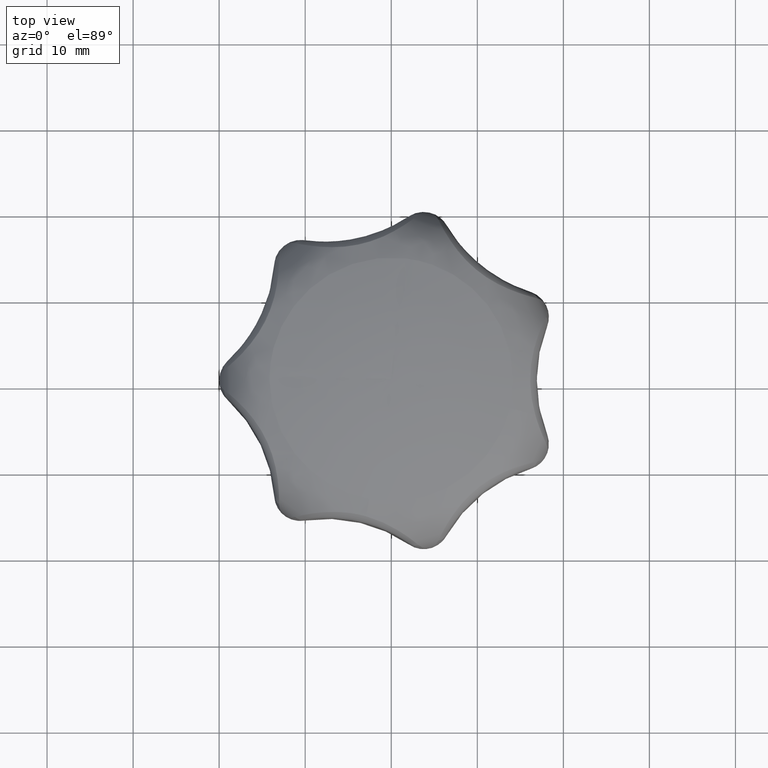
[diagram: clean part render]
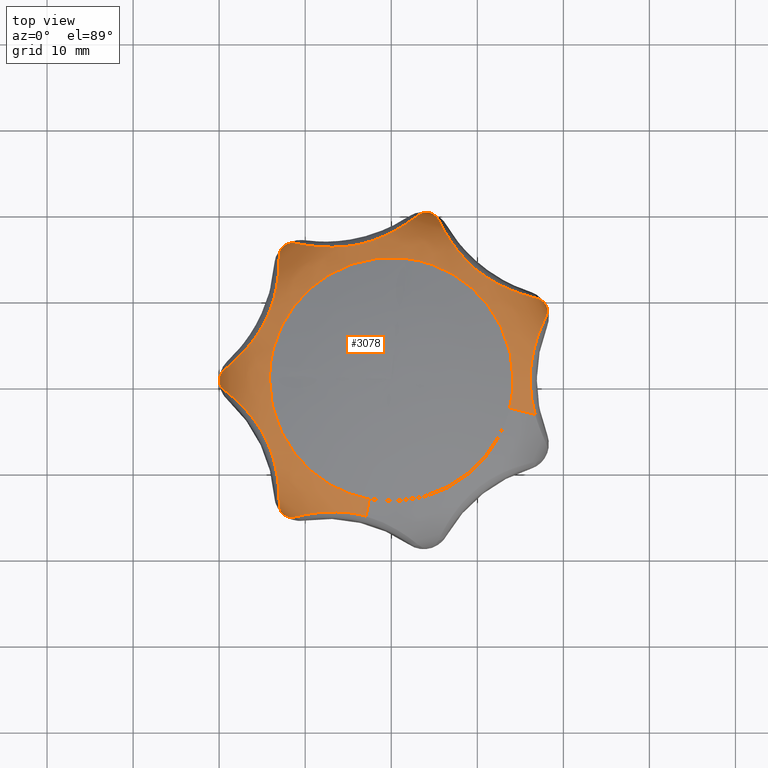
[diagram: same view with one face highlighted and labeled with its STEP entity id]
A machine part, top view. The second image highlights one B-rep face of the part: STEP entity #3078.
In plain terms, the highlighted face is a freeform B-spline surface patch.
Its self-contained STEP definition (entity closure, byte-faithful):
#2155=CARTESIAN_POINT('',(-2.555872080191708,-13.924026211694240,23.484274901219809));
#2156=VERTEX_POINT('',#2155);
#2157=CARTESIAN_POINT('',(13.755059415906590,-3.348035727709375,23.484274579114441));
#2158=VERTEX_POINT('',#2157);
#2174=CARTESIAN_POINT('',(-2.918604667190907,-15.900141547597050,22.712634018882738));
#2175=VERTEX_POINT('',#2174);
#2176=CARTESIAN_POINT('',(-2.918604667190908,-15.900141547597054,22.712634018882738));
#2177=CARTESIAN_POINT('',(-2.747337455134375,-14.967102233585980,23.244096928042421));
#2178=CARTESIAN_POINT('',(-2.555872080191708,-13.924026211694235,23.484274901219813));
#2186=(BOUNDED_CURVE()B_SPLINE_CURVE(2,(#2176,#2177,#2178),.UNSPECIFIED.,.F.,.U.)B_SPLINE_CURVE_WITH_KNOTS((3,3),(-0.611580639836054,-0.305029398662401),.UNSPECIFIED.)CURVE()GEOMETRIC_REPRESENTATION_ITEM()RATIONAL_B_SPLINE_CURVE((0.808535295945708,0.832229409157747,0.874623568141432))REPRESENTATION_ITEM(''));
#2187=EDGE_CURVE('',#2175,#2156,#2186,.T.);
#2374=CARTESIAN_POINT('',(16.727859375144970,-4.071626966035197,22.001084314671921));
#2375=VERTEX_POINT('',#2374);
#2399=CARTESIAN_POINT('',(16.727859375144966,-4.071626966035197,22.001084314671921));
#2400=CARTESIAN_POINT('',(15.409158188398800,-3.750649894654364,23.098715307109856));
#2401=CARTESIAN_POINT('',(13.755059415906594,-3.348035727709375,23.484274579114441));
#2409=(BOUNDED_CURVE()B_SPLINE_CURVE(2,(#2399,#2400,#2401),.UNSPECIFIED.,.F.,.U.)B_SPLINE_CURVE_WITH_KNOTS((3,3),(-0.783102013579463,-0.305029484415315),.UNSPECIFIED.)CURVE()GEOMETRIC_REPRESENTATION_ITEM()RATIONAL_B_SPLINE_CURVE((0.806005381889881,0.827114324440198,0.894750234435221))REPRESENTATION_ITEM(''));
#2410=EDGE_CURVE('',#2375,#2158,#2409,.T.);
#2415=CARTESIAN_POINT('',(19.418769040336933,-4.726604994361935,15.707088083103853));
#2416=CARTESIAN_POINT('',(24.145374034698854,14.692164045974993,15.707088083103859));
#2417=CARTESIAN_POINT('',(4.726604994361936,19.418769040336933,15.707088083103853));
#2418=CARTESIAN_POINT('',(-14.692164045974989,24.145374034698854,15.707088083103859));
#2419=CARTESIAN_POINT('',(-19.418769040336933,4.726604994361937,15.707088083103853));
#2420=CARTESIAN_POINT('',(-24.145374034698854,-14.692164045974984,15.707088083103859));
#2421=CARTESIAN_POINT('',(-4.726604994361943,-19.418769040336933,15.707088083103853));
#2422=CARTESIAN_POINT('',(-4.170848167294949,-19.554042444588713,15.707088083103853));
#2423=CARTESIAN_POINT('',(-3.608264416988990,-19.657309421987691,15.707088083103848));
#2424=CARTESIAN_POINT('',(19.825513127380642,-4.825608109814543,22.483440366863590));
#2425=CARTESIAN_POINT('',(24.651121237195188,14.999905017566103,22.483440366863597));
#2426=CARTESIAN_POINT('',(4.825608109814545,19.825513127380642,22.483440366863590));
#2427=CARTESIAN_POINT('',(-14.999905017566103,24.651121237195209,22.483440366863597));
#2428=CARTESIAN_POINT('',(-19.825513127380642,4.825608109814547,22.483440366863590));
#2429=CARTESIAN_POINT('',(-24.651121237195209,-14.999905017566098,22.483440366863597));
#2430=CARTESIAN_POINT('',(-4.825608109814552,-19.825513127380642,22.483440366863590));
#2431=CARTESIAN_POINT('',(-4.258210441725447,-19.963619958262083,22.483440366863604));
#2432=CARTESIAN_POINT('',(-3.683842854172724,-20.069049958062561,22.483440366863604));
#2433=CARTESIAN_POINT('',(13.314253197602527,-3.240741755013714,23.572424024737455));
#2434=CARTESIAN_POINT('',(16.554994952616237,10.073511442588810,23.572424024737451));
#2435=CARTESIAN_POINT('',(3.240741755013714,13.314253197602527,23.572424024737455));
#2436=CARTESIAN_POINT('',(-10.073511442588808,16.554994952616237,23.572424024737451));
#2437=CARTESIAN_POINT('',(-13.314253197602527,3.240741755013715,23.572424024737455));
#2438=CARTESIAN_POINT('',(-16.554994952616237,-10.073511442588803,23.572424024737451));
#2439=CARTESIAN_POINT('',(-3.240741755013718,-13.314253197602527,23.572424024737455));
#2440=CARTESIAN_POINT('',(-2.859693548688393,-13.407001834314189,23.572424024737451));
#2441=CARTESIAN_POINT('',(-2.473964541825434,-13.477805636614184,23.572424024737462));
#2449=(BOUNDED_SURFACE()B_SPLINE_SURFACE(2,2,((#2415,#2424,#2433),(#2416,#2425,#2434),(#2417,#2426,#2435),(#2418,#2427,#2436),(#2419,#2428,#2437),(#2420,#2429,#2438),(#2421,#2430,#2439),(#2422,#2431,#2440),(#2423,#2432,#2441)),.UNSPECIFIED.,.F.,.F.,.U.)B_SPLINE_SURFACE_WITH_KNOTS((3,2,2,2,3),(3,3),(0.0,33.113440941125333,66.226881882250652,99.340322823375971,100.664860461020990),(0.0,11.561759289067121),.UNSPECIFIED.)GEOMETRIC_REPRESENTATION_ITEM()RATIONAL_B_SPLINE_SURFACE(((0.914120687273561,0.678137841699596,0.915320311075312),(0.646380936794042,0.479515866444994,0.647229198919133),(0.914120687273561,0.678137841699596,0.915320311075312),(0.646380936794042,0.479515866444994,0.647229198919133),(0.914120687273561,0.678137841699596,0.915320311075312),(0.646380936794042,0.479515866444994,0.647229198919133),(0.914120687273561,0.678137841699596,0.915320311075312),(0.903411097254380,0.670192962689412,0.904596666589065),(0.893558274436734,0.662883674000043,0.894730913661717)))REPRESENTATION_ITEM('')SURFACE());
#2450=CARTESIAN_POINT('',(-14.156655298356300,0.0,23.484275474744681));
#2451=VERTEX_POINT('',#2450);
#2452=CARTESIAN_POINT('',(-14.156655298356300,0.0,23.484275474744681));
#2453=CARTESIAN_POINT('',(-14.156655298356309,-11.794602719198927,23.484275474744685));
#2454=CARTESIAN_POINT('',(-2.555872080191708,-13.924026211694237,23.484274901219816));
#2462=(BOUNDED_CURVE()B_SPLINE_CURVE(2,(#2452,#2453,#2454),.UNSPECIFIED.,.F.,.U.)B_SPLINE_CURVE_WITH_KNOTS((3,3),(0.0,0.218989093635942),.UNSPECIFIED.)CURVE()GEOMETRIC_REPRESENTATION_ITEM()RATIONAL_B_SPLINE_CURVE((1.0,0.743438317919714,0.936350317603224))REPRESENTATION_ITEM(''));
#2463=EDGE_CURVE('',#2451,#2156,#2462,.T.);
#2464=ORIENTED_EDGE('',*,*,#2463,.F.);
#2465=CARTESIAN_POINT('',(1.634552423069075,14.061897552732781,23.484292791448969));
#2466=VERTEX_POINT('',#2465);
#2467=CARTESIAN_POINT('',(1.634552423069075,14.061897552732784,23.484292791448965));
#2468=CARTESIAN_POINT('',(0.820014128056921,14.156581436390683,23.484292344836099));
#2469=CARTESIAN_POINT('',(-0.000008560112460,14.156583749900550,23.484291843301921));
#2470=CARTESIAN_POINT('',(-14.156661194622668,14.156623689716854,23.484283184949774));
#2471=CARTESIAN_POINT('',(-14.156655298356300,0.0,23.484275474744681));
#2479=(BOUNDED_CURVE()B_SPLINE_CURVE(2,(#2467,#2468,#2469,#2470,#2471),.UNSPECIFIED.,.F.,.U.)B_SPLINE_CURVE_WITH_KNOTS((3,2,3),(0.730000313272835,0.750000000000000,1.0),.UNSPECIFIED.)CURVE()GEOMETRIC_REPRESENTATION_ITEM()RATIONAL_B_SPLINE_CURVE((0.956886734788466,0.976568909516880,1.0,0.707106781186548,1.0))REPRESENTATION_ITEM(''));
#2480=EDGE_CURVE('',#2466,#2451,#2479,.T.);
#2481=ORIENTED_EDGE('',*,*,#2480,.F.);
#2482=CARTESIAN_POINT('',(14.156659255858120,0.0,23.484274578441550));
#2483=VERTEX_POINT('',#2482);
#2484=CARTESIAN_POINT('',(14.156659255858120,0.0,23.484274578441550));
#2485=CARTESIAN_POINT('',(14.156654613261113,12.606371143016760,23.484283684945257));
#2486=CARTESIAN_POINT('',(1.634552423069075,14.061897552732784,23.484292791448965));
#2494=(BOUNDED_CURVE()B_SPLINE_CURVE(2,(#2484,#2485,#2486),.UNSPECIFIED.,.F.,.U.)B_SPLINE_CURVE_WITH_KNOTS((3,3),(0.500000000000000,0.730000313272835),.UNSPECIFIED.)CURVE()GEOMETRIC_REPRESENTATION_ITEM()RATIONAL_B_SPLINE_CURVE((1.0,0.730537871669667,0.956886734788466))REPRESENTATION_ITEM(''));
#2495=EDGE_CURVE('',#2483,#2466,#2494,.T.);
#2496=ORIENTED_EDGE('',*,*,#2495,.F.);
#2497=CARTESIAN_POINT('',(13.755059415906594,-3.348035727709375,23.484274579114444));
#2498=CARTESIAN_POINT('',(14.156659255858116,-1.698103998237507,23.484274578441550));
#2499=CARTESIAN_POINT('',(14.156659255858120,0.0,23.484274578441550));
#2507=(BOUNDED_CURVE()B_SPLINE_CURVE(2,(#2497,#2498,#2499),.UNSPECIFIED.,.F.,.U.)B_SPLINE_CURVE_WITH_KNOTS((3,3),(0.459598322152084,0.500000000000000),.UNSPECIFIED.)CURVE()GEOMETRIC_REPRESENTATION_ITEM()RATIONAL_B_SPLINE_CURVE((0.920631805978382,0.952666490118639,1.0))REPRESENTATION_ITEM(''));
#2508=EDGE_CURVE('',#2158,#2483,#2507,.T.);
#2509=ORIENTED_EDGE('',*,*,#2508,.F.);
#2510=ORIENTED_EDGE('',*,*,#2410,.F.);
#2511=CARTESIAN_POINT('',(17.995270674079599,7.347284940783149,19.019537040948201));
#2512=VERTEX_POINT('',#2511);
#2513=CARTESIAN_POINT('',(16.727859375144970,-4.071626966035197,22.001084314671921));
#2514=CARTESIAN_POINT('',(16.653157353315201,-3.809894756977453,22.109870501773131));
#2515=CARTESIAN_POINT('',(16.583579885524770,-3.542896922609122,22.203994124108071));
#2516=CARTESIAN_POINT('',(16.440021319670489,-2.926240159464920,22.388958582303211));
#2517=CARTESIAN_POINT('',(16.369849014100229,-2.573588198667207,22.472149253644410));
#2518=CARTESIAN_POINT('',(16.283233658143651,-2.033150082829257,22.570743075351078));
#2519=CARTESIAN_POINT('',(16.257469293196451,-1.851087817195164,22.599220634317611));
#2520=CARTESIAN_POINT('',(16.223922045902320,-1.575112091960674,22.635662829328361));
#2521=CARTESIAN_POINT('',(16.213608765302261,-1.482771113477432,22.646741887806559));
#2522=CARTESIAN_POINT('',(16.194856513946839,-1.298357644326601,22.666730009593401));
#2523=CARTESIAN_POINT('',(16.186400224764149,-1.206146206254940,22.675657930164871));
#2524=CARTESIAN_POINT('',(16.148751987294169,-0.745065903817191,22.715163716741039));
#2525=CARTESIAN_POINT('',(16.118225747518391,-0.007190223239446,22.745864604005401));
#2526=CARTESIAN_POINT('',(16.147978856663759,0.730970998839293,22.715953809637611));
#2527=CARTESIAN_POINT('',(16.185194014452811,1.192413903132433,22.676930127445740));
#2528=CARTESIAN_POINT('',(16.193566190247470,1.284707113696189,22.668097973495279));
#2529=CARTESIAN_POINT('',(16.212156459985820,1.469302960682748,22.648299476467312));
#2530=CARTESIAN_POINT('',(16.222387298873048,1.561703686047635,22.637319194706670));
#2531=CARTESIAN_POINT('',(16.255699426231669,1.837911724974743,22.601168475473148));
#2532=CARTESIAN_POINT('',(16.281405089185760,2.020855731182717,22.572792040349281));
#2533=CARTESIAN_POINT('',(16.339383434950289,2.384315514097311,22.506864181703751));
#2534=CARTESIAN_POINT('',(16.371702014986472,2.564991094098353,22.469251370319721));
#2535=CARTESIAN_POINT('',(16.441803183915340,2.920809999169017,22.384802585808700));
#2536=CARTESIAN_POINT('',(16.479637151459329,3.096323712587525,22.337909590951220));
#2537=CARTESIAN_POINT('',(16.600469318769630,3.615591652980403,22.182260570267118));
#2538=CARTESIAN_POINT('',(16.690793799909940,3.952104339278098,22.058619537607719));
#2539=CARTESIAN_POINT('',(16.836962958222760,4.441486654339312,21.838055569001678));
#2540=CARTESIAN_POINT('',(16.887467839290860,4.602042168729803,21.758664118978761));
#2541=CARTESIAN_POINT('',(16.965402395545610,4.838825998150572,21.629887598633101));
#2542=CARTESIAN_POINT('',(16.991755694038950,4.917106050774388,21.585318345886218));
#2543=CARTESIAN_POINT('',(17.044653920746899,5.070998318219447,21.493577018521911));
#2544=CARTESIAN_POINT('',(17.071251711512250,5.146774057928479,21.446319384048550));
#2545=CARTESIAN_POINT('',(17.204716273901830,5.519801523127255,21.202968986051811));
#2546=CARTESIAN_POINT('',(17.312998656588132,5.799576174902859,20.985779642006161));
#2547=CARTESIAN_POINT('',(17.472777698940849,6.190426259372236,20.622831763699160));
#2548=CARTESIAN_POINT('',(17.525599375784690,6.315893123288732,20.495638393906049));
#2549=CARTESIAN_POINT('',(17.603547999029811,6.496593826187418,20.294889456916920));
#2550=CARTESIAN_POINT('',(17.629272346430909,6.555470638192311,20.226414029349328));
#2551=CARTESIAN_POINT('',(17.679755445204471,6.669711436237122,20.087260167405191));
#2552=CARTESIAN_POINT('',(17.704565486989910,6.725194740458864,20.016451269406922));
#2553=CARTESIAN_POINT('',(17.826239275509330,6.994483578848321,19.656218188815110));
#2554=CARTESIAN_POINT('',(17.915998995164991,7.184076639657524,19.348350510219650));
#2555=CARTESIAN_POINT('',(17.995270674079599,7.347284940783149,19.019537040948201));
#2556=B_SPLINE_CURVE_WITH_KNOTS('',3,(#2513,#2514,#2515,#2516,#2517,#2518,#2519,#2520,#2521,#2522,#2523,#2524,#2525,#2526,#2527,#2528,#2529,#2530,#2531,#2532,#2533,#2534,#2535,#2536,#2537,#2538,#2539,#2540,#2541,#2542,#2543,#2544,#2545,#2546,#2547,#2548,#2549,#2550,#2551,#2552,#2553,#2554,#2555),.UNSPECIFIED.,.F.,.U.,(4,2,2,2,2,2,1,2,2,2,2,2,2,2,2,2,2,2,2,2,2,4),(0.263202413710242,0.312499999999998,0.374999999999998,0.406249999999998,0.421874999999998,0.437499999999999,0.499999999999999,0.562499999999999,0.578124999999999,0.593750000000000,0.625000000000000,0.656250000000000,0.687500000000000,0.750000000000000,0.781250000000000,0.796875000000001,0.812500000000001,0.875000000000000,0.906250000000001,0.921875000000000,0.937500000000000,1.0),.UNSPECIFIED.);
#2557=EDGE_CURVE('',#2375,#2512,#2556,.T.);
#2558=ORIENTED_EDGE('',*,*,#2557,.T.);
#2559=CARTESIAN_POINT('',(18.019377034223250,8.677674389079391,16.169530556264149));
#2560=VERTEX_POINT('',#2559);
#2561=CARTESIAN_POINT('',(17.995270674079599,7.347284940783149,19.019537040948201));
#2562=CARTESIAN_POINT('',(18.051437381895560,7.462925533524145,18.786559494290501));
#2563=CARTESIAN_POINT('',(18.092208958625509,7.579161760241037,18.553115685170010));
#2564=CARTESIAN_POINT('',(18.146584934051351,7.809981764249967,18.084114423334960));
#2565=CARTESIAN_POINT('',(18.160164046852788,7.924583440951729,17.848564283200549));
#2566=CARTESIAN_POINT('',(18.162103073822060,8.149781631829123,17.374322109756239));
#2567=CARTESIAN_POINT('',(18.150452708948631,8.260389798314671,17.135635138288588));
#2568=CARTESIAN_POINT('',(18.114711552578392,8.421545804663959,16.774443276775688));
#2569=CARTESIAN_POINT('',(18.099720397006720,8.474521191049865,16.653393190699529));
#2570=CARTESIAN_POINT('',(18.072846250290681,8.552122834489783,16.471948725501850));
#2571=CARTESIAN_POINT('',(18.063154692171640,8.577695907521029,16.411452537204969));
#2572=CARTESIAN_POINT('',(18.047527250101599,8.615594338993393,16.320676158872931));
#2573=CARTESIAN_POINT('',(18.042136531098869,8.628150003353401,16.290409677732629));
#2574=CARTESIAN_POINT('',(18.033776180773529,8.646871036404514,16.245016516499451));
#2575=CARTESIAN_POINT('',(18.030944641855822,8.653090677607114,16.229885234089458));
#2576=CARTESIAN_POINT('',(18.026618502809001,8.662413379762283,16.207200154630819));
#2577=CARTESIAN_POINT('',(18.025165417357321,8.665515461864672,16.199638128659849));
#2578=CARTESIAN_POINT('',(18.022204398976388,8.671776689508290,16.184548536782099));
#2579=CARTESIAN_POINT('',(18.020797068062009,8.674726724050343,16.177045630835980));
#2580=CARTESIAN_POINT('',(18.019377034223250,8.677674389079391,16.169530556264149));
#2581=B_SPLINE_CURVE_WITH_KNOTS('',3,(#2561,#2562,#2563,#2564,#2565,#2566,#2567,#2568,#2569,#2570,#2571,#2572,#2573,#2574,#2575,#2576,#2577,#2578,#2579,#2580),.UNSPECIFIED.,.F.,.U.,(4,2,2,2,2,2,2,2,2,4),(0.0,0.250000000000000,0.499999999999999,0.749999999999999,0.874999999999998,0.937499999999997,0.968749999999999,0.984374999999998,0.992187499999999,1.0),.UNSPECIFIED.);
#2582=EDGE_CURVE('',#2512,#2560,#2581,.T.);
#2583=ORIENTED_EDGE('',*,*,#2582,.T.);
#2584=CARTESIAN_POINT('',(16.964205824525401,9.488311011190650,19.019539391067500));
#2585=VERTEX_POINT('',#2584);
#2586=CARTESIAN_POINT('',(18.019377034223250,8.677674389079391,16.169530556264149));
#2587=CARTESIAN_POINT('',(18.017957832525191,8.680622457553705,16.177045636439669));
#2588=CARTESIAN_POINT('',(18.016528857950060,8.683562072167309,16.184548548000631));
#2589=CARTESIAN_POINT('',(18.013479795718570,8.689780905683277,16.199638151180562));
#2590=CARTESIAN_POINT('',(18.011960473147159,8.692851092482398,16.207200182788981));
#2591=CARTESIAN_POINT('',(18.007368991380730,8.702046020752256,16.229885279161259));
#2592=CARTESIAN_POINT('',(18.004271713447618,8.708137694426553,16.245016572838050));
#2593=CARTESIAN_POINT('',(17.994847606585228,8.726346466234114,16.290409767864659));
#2594=CARTESIAN_POINT('',(17.988392246281229,8.738389437661926,16.320676271573671));
#2595=CARTESIAN_POINT('',(17.968505594577660,8.774236775687330,16.411452717508521));
#2596=CARTESIAN_POINT('',(17.954554337222291,8.797758508096521,16.471948950692770));
#2597=CARTESIAN_POINT('',(17.910638648544261,8.867153444174111,16.653393550071861));
#2598=CARTESIAN_POINT('',(17.878567626799921,8.911903645897677,16.774443728180351));
#2599=CARTESIAN_POINT('',(17.774854931723389,9.040326420379376,17.135635870846411));
#2600=CARTESIAN_POINT('',(17.695641786168540,9.118398150284333,17.374323022976959));
#2601=CARTESIAN_POINT('',(17.518365597742299,9.257290989616788,17.848565546808029));
#2602=CARTESIAN_POINT('',(17.420299853589750,9.318127400678460,18.084115856647401));
#2603=CARTESIAN_POINT('',(17.205934405117009,9.419528455301990,18.553117449105869));
#2604=CARTESIAN_POINT('',(17.089636471974050,9.460124028411846,18.786561419117142));
#2605=CARTESIAN_POINT('',(16.964205824525401,9.488311011190650,19.019539391067500));
#2606=B_SPLINE_CURVE_WITH_KNOTS('',3,(#2586,#2587,#2588,#2589,#2590,#2591,#2592,#2593,#2594,#2595,#2596,#2597,#2598,#2599,#2600,#2601,#2602,#2603,#2604,#2605),.UNSPECIFIED.,.F.,.U.,(4,2,2,2,2,2,2,2,2,4),(0.0,0.007812499999999,0.015624999999999,0.031249999999999,0.062499999999999,0.124999999999999,0.250000000000001,0.500000000000000,0.750000000000000,1.0),.UNSPECIFIED.);
#2607=EDGE_CURVE('',#2560,#2585,#2606,.T.);
#2608=ORIENTED_EDGE('',*,*,#2607,.T.);
#2609=CARTESIAN_POINT('',(5.475528592877010,18.650226120035651,19.019537976085349));
#2610=VERTEX_POINT('',#2609);
#2611=CARTESIAN_POINT('',(16.964205824525401,9.488311011190650,19.019539391067500));
#2612=CARTESIAN_POINT('',(16.787044536348571,9.528123595850502,19.348602426840760));
#2613=CARTESIAN_POINT('',(16.583438120275009,9.576036881535801,19.655304903652610));
#2614=CARTESIAN_POINT('',(16.242549885833441,9.662612820211605,20.084587125458430));
#2615=CARTESIAN_POINT('',(16.122973907085829,9.693937750779899,20.222523307508009));
#2616=CARTESIAN_POINT('',(15.934977740934890,9.745088917879002,20.421822719125888));
#2617=CARTESIAN_POINT('',(15.870872347591030,9.762834322814758,20.486987144277428));
#2618=CARTESIAN_POINT('',(15.739815594941559,9.799806062178179,20.614786951979251));
#2619=CARTESIAN_POINT('',(15.672728976813840,9.819072180189505,20.677542254434709));
#2620=CARTESIAN_POINT('',(15.331894026418110,9.918872559679608,20.983532442607761));
#2621=CARTESIAN_POINT('',(15.044460722126940,10.009030657779039,21.201534975442090));
#2622=CARTESIAN_POINT('',(14.595465641863260,10.162555573971931,21.493275476438068));
#2623=CARTESIAN_POINT('',(14.442811812232790,10.216787608503870,21.584619127526761));
#2624=CARTESIAN_POINT('',(14.209793405154940,10.303161551414091,21.713215366371180));
#2625=CARTESIAN_POINT('',(14.131447220815559,10.332791171564811,21.754676603790010));
#2626=CARTESIAN_POINT('',(13.973478099126741,10.393808768352560,21.834852937131089));
#2627=CARTESIAN_POINT('',(13.894028735845019,10.425132216502821,21.873474234053909));
#2628=CARTESIAN_POINT('',(13.496820644852450,10.585078353933790,22.058559140888448));
#2629=CARTESIAN_POINT('',(13.177147424432979,10.724457977361959,22.182155420847451));
#2630=CARTESIAN_POINT('',(12.538013501164119,11.028847886566901,22.388962460018622));
#2631=CARTESIAN_POINT('',(12.218547346068840,11.193859785574400,22.472153000191700));
#2632=CARTESIAN_POINT('',(11.742011977344349,11.463098688968900,22.570746627199309));
#2633=CARTESIAN_POINT('',(11.583606133573131,11.556469215252481,22.599224121604109));
#2634=CARTESIAN_POINT('',(11.346923236816259,11.702308896177550,22.635666220405479));
#2635=CARTESIAN_POINT('',(11.268297913035671,11.751819286527491,22.646745248109418));
#2636=CARTESIAN_POINT('',(11.112425795437250,11.852138059254971,22.666733307983019));
#2637=CARTESIAN_POINT('',(11.035059568194130,11.903019535050641,22.675661197723031));
#2638=CARTESIAN_POINT('',(10.651099121468301,12.161063710930989,22.715166830815260));
#2639=CARTESIAN_POINT('',(10.055171798454531,12.597255107010371,22.745867476838310));
#2640=CARTESIAN_POINT('',(9.496604798349608,13.080752805114150,22.715956452205671));
#2641=CARTESIAN_POINT('',(9.159037432963640,13.397553589844900,22.676932631073111));
#2642=CARTESIAN_POINT('',(9.092099652281412,13.461643067138050,22.668100449588529));
#2643=CARTESIAN_POINT('',(8.959367632778497,13.591271094640391,22.648301898064840));
#2644=CARTESIAN_POINT('',(8.893504650582372,13.656880767307690,22.637321589242688));
#2645=CARTESIAN_POINT('',(8.698326243427445,13.855138053545490,22.601170788064699));
#2646=CARTESIAN_POINT('',(8.571322053621840,13.989299218348330,22.572794299428519));
#2647=CARTESIAN_POINT('',(8.323306611151553,14.261241871917830,22.506866336510662));
#2648=CARTESIAN_POINT('',(8.202199029806261,14.399158886795210,22.469253472663400));
#2649=CARTESIAN_POINT('',(7.967715910143052,14.675815549427220,22.384804584630551));
#2650=CARTESIAN_POINT('',(7.854082826327509,14.814826297682430,22.337911539354419));
#2651=CARTESIAN_POINT('',(7.523440338723435,15.233054806125409,22.182262372269680));
#2652=CARTESIAN_POINT('',(7.316660463072688,15.513485454861749,22.058621248354999));
#2653=CARTESIAN_POINT('',(7.025180860027608,15.932889829779199,21.838057157534958));
#2654=CARTESIAN_POINT('',(6.931142755650722,16.072480808534930,21.758665669246451));
#2655=CARTESIAN_POINT('',(6.794609064497858,16.281044720532389,21.629889096210920));
#2656=CARTESIAN_POINT('',(6.749838250697270,16.350455352419470,21.585319822926468));
#2657=CARTESIAN_POINT('',(6.662501901633696,16.487763070239289,21.493578454738859));
#2658=CARTESIAN_POINT('',(6.619841477090008,16.555803441155071,21.446320800474279));
#2659=CARTESIAN_POINT('',(6.411410571035953,16.892728957557669,21.202970306865240));
#2660=CARTESIAN_POINT('',(6.260186838430840,17.151824096198819,20.985780896872580));
#2661=CARTESIAN_POINT('',(6.054228449398105,17.520435309477499,20.622832941746282));
#2662=CARTESIAN_POINT('',(5.989068252043947,17.639960232370580,20.495639550058652));
#2663=CARTESIAN_POINT('',(5.896390880851542,17.813567911705579,20.294890586981619));
#2664=CARTESIAN_POINT('',(5.866397985102145,17.870389098411181,20.226415142595570));
#2665=CARTESIAN_POINT('',(5.808556594777589,17.981086324621099,20.087261252352569));
#2666=CARTESIAN_POINT('',(5.780646791492661,18.035076860098961,20.016452340808240));
#2667=CARTESIAN_POINT('',(5.645970580378835,18.298104052599999,19.656219195602642));
#2668=CARTESIAN_POINT('',(5.553704960983113,18.486490335312698,19.348351475154569));
#2669=CARTESIAN_POINT('',(5.475528592877009,18.650226120035651,19.019537976085349));
#2670=B_SPLINE_CURVE_WITH_KNOTS('',3,(#2611,#2612,#2613,#2614,#2615,#2616,#2617,#2618,#2619,#2620,#2621,#2622,#2623,#2624,#2625,#2626,#2627,#2628,#2629,#2630,#2631,#2632,#2633,#2634,#2635,#2636,#2637,#2638,#2639,#2640,#2641,#2642,#2643,#2644,#2645,#2646,#2647,#2648,#2649,#2650,#2651,#2652,#2653,#2654,#2655,#2656,#2657,#2658,#2659,#2660,#2661,#2662,#2663,#2664,#2665,#2666,#2667,#2668,#2669),.UNSPECIFIED.,.F.,.U.,(4,2,2,2,2,2,2,2,2,2,2,2,2,2,1,2,2,2,2,2,2,2,2,2,2,2,2,2,2,4),(0.0,0.062500000000000,0.093750000000000,0.109375000000000,0.124999999999999,0.187499999999999,0.218749999999998,0.234374999999998,0.249999999999998,0.312499999999998,0.374999999999998,0.406249999999998,0.421874999999998,0.437499999999998,0.499999999999999,0.562499999999999,0.578124999999999,0.593749999999999,0.624999999999999,0.656250000000000,0.687500000000000,0.750000000000001,0.781250000000001,0.796875000000001,0.812500000000001,0.875000000000001,0.906250000000001,0.921875000000000,0.937500000000000,1.0),.UNSPECIFIED.);
#2671=EDGE_CURVE('',#2585,#2610,#2670,.T.);
#2672=ORIENTED_EDGE('',*,*,#2671,.T.);
#2673=CARTESIAN_POINT('',(4.450418893836071,19.498557955092501,16.169530556264149));
#2674=VERTEX_POINT('',#2673);
#2675=CARTESIAN_POINT('',(5.475528592877010,18.650226120035651,19.019537976085349));
#2676=CARTESIAN_POINT('',(5.420137732715055,18.766239560040329,18.786560097071870));
#2677=CARTESIAN_POINT('',(5.354681351600921,18.870588164446350,18.553116287697080));
#2678=CARTESIAN_POINT('',(5.208122125829791,19.057014913838898,18.084115037187050));
#2679=CARTESIAN_POINT('',(5.126989511445617,19.139084459268549,17.848564892474862));
#2680=CARTESIAN_POINT('',(4.952131891509981,19.281009180174308,17.374322641615329));
#2681=CARTESIAN_POINT('',(4.858391285230256,19.340863602922941,17.135635631570651));
#2682=CARTESIAN_POINT('',(4.710111357921909,19.413398958362201,16.774443368882441));
#2683=CARTESIAN_POINT('',(4.659347090258961,19.434707944848999,16.653393155015181));
#2684=CARTESIAN_POINT('',(4.581922125072484,19.462080255356849,16.471947733341160));
#2685=CARTESIAN_POINT('',(4.555886435213333,19.470447484862991,16.411451226020851));
#2686=CARTESIAN_POINT('',(4.516517045620655,19.481857769526091,16.320672869088121));
#2687=CARTESIAN_POINT('',(4.503341019093913,19.485471140432178,16.290405734451770));
#2688=CARTESIAN_POINT('',(4.476886897797342,19.492316490842001,16.229876170088460));
#2689=CARTESIAN_POINT('',(4.463369782098921,19.495602238710450,16.199504594855028));
#2690=CARTESIAN_POINT('',(4.450418893836071,19.498557955092501,16.169530556264149));
#2691=B_SPLINE_CURVE_WITH_KNOTS('',3,(#2675,#2676,#2677,#2678,#2679,#2680,#2681,#2682,#2683,#2684,#2685,#2686,#2687,#2688,#2689,#2690),.UNSPECIFIED.,.F.,.U.,(4,2,2,2,2,2,2,4),(0.0,0.250000000000000,0.500000000000000,0.750000000000000,0.875000000000000,0.937500000000000,0.968750000000000,1.0),.UNSPECIFIED.);
#2692=EDGE_CURVE('',#2610,#2674,#2691,.T.);
#2693=ORIENTED_EDGE('',*,*,#2692,.T.);
#2694=CARTESIAN_POINT('',(3.158749276453330,19.179015916222749,19.019537925595550));
#2695=VERTEX_POINT('',#2694);
#2696=CARTESIAN_POINT('',(4.450418893836071,19.498557955092501,16.169530556264149));
#2697=CARTESIAN_POINT('',(4.437468109228667,19.501514126891578,16.199504595492190));
#2698=CARTESIAN_POINT('',(4.423863976052128,19.504418627478309,16.229876171295551));
#2699=CARTESIAN_POINT('',(4.397059549726292,19.509729193753451,16.290405736835510));
#2700=CARTESIAN_POINT('',(4.383620576945476,19.512190523119379,16.320672872064350));
#2701=CARTESIAN_POINT('',(4.343199244988743,19.518991951019949,16.411451230768112));
#2702=CARTESIAN_POINT('',(4.316111493718881,19.522749800958540,16.471947739255089));
#2703=CARTESIAN_POINT('',(4.234477608713410,19.531681636965509,16.653393164388952));
#2704=CARTESIAN_POINT('',(4.179494960108666,19.534508695189729,16.774443380801848));
#2705=CARTESIAN_POINT('',(4.014427446649365,19.533492851131658,17.135635651965231));
#2706=CARTESIAN_POINT('',(3.904000215095254,19.520238406282580,17.374322667355521));
#2707=CARTESIAN_POINT('',(3.684880108543491,19.468236531744211,17.848564928381631));
#2708=CARTESIAN_POINT('',(3.576173504370230,19.429496549141859,18.084115077914280));
#2709=CARTESIAN_POINT('',(3.363240662989206,19.325121516919332,18.553116337597871));
#2710=CARTESIAN_POINT('',(3.258991343445311,19.259507137353040,18.786560133071490));
#2711=CARTESIAN_POINT('',(3.158749276453330,19.179015916222749,19.019537925595550));
#2712=B_SPLINE_CURVE_WITH_KNOTS('',3,(#2696,#2697,#2698,#2699,#2700,#2701,#2702,#2703,#2704,#2705,#2706,#2707,#2708,#2709,#2710,#2711),.UNSPECIFIED.,.F.,.U.,(4,2,2,2,2,2,2,4),(0.0,0.031250000000000,0.062499999999999,0.124999999999999,0.249999999999999,0.500000000000000,0.750000000000000,1.0),.UNSPECIFIED.);
#2713=EDGE_CURVE('',#2674,#2695,#2712,.T.);
#2714=ORIENTED_EDGE('',*,*,#2713,.T.);
#2715=CARTESIAN_POINT('',(-11.167398497217921,15.909166120315851,19.019537466419699));
#2716=VERTEX_POINT('',#2715);
#2717=CARTESIAN_POINT('',(3.158749276453330,19.179015916222749,19.019537925595550));
#2718=CARTESIAN_POINT('',(3.017164759073999,19.065328284725400,19.348601201480310));
#2719=CARTESIAN_POINT('',(2.852758161394768,18.936015837753910,19.655303781333082));
#2720=CARTESIAN_POINT('',(2.572530075690494,18.723477902515722,20.084586156419309));
#2721=CARTESIAN_POINT('',(2.473484868341749,18.649520410782671,20.222522389336390));
#2722=CARTESIAN_POINT('',(2.316279598129897,18.534431313499489,20.421821876680799));
#2723=CARTESIAN_POINT('',(2.262436627160533,18.495375774711331,20.486986326977970));
#2724=CARTESIAN_POINT('',(2.151818415654359,18.415962974310069,20.614786184729699));
#2725=CARTESIAN_POINT('',(2.094927737911778,18.375524767283981,20.677541512796161));
#2726=CARTESIAN_POINT('',(1.804393561462969,18.171273770863891,20.983531815993601));
#2727=CARTESIAN_POINT('',(1.554693392012881,18.002761992884381,21.201534435554780));
#2728=CARTESIAN_POINT('',(1.154718915147225,17.747444671721780,21.493275057511919));
#2729=CARTESIAN_POINT('',(1.017140490984913,17.661908203074301,21.584618747392980));
#2730=CARTESIAN_POINT('',(0.804326009014277,17.533580317499741,21.713215041950800));
#2731=CARTESIAN_POINT('',(0.732312586930304,17.490800559107448,21.754676297528100));
#2732=CARTESIAN_POINT('',(0.586114960321631,17.405339153123510,21.834852666329841));
#2733=CARTESIAN_POINT('',(0.512089432679167,17.362752981145778,21.873473977987661));
#2734=CARTESIAN_POINT('',(0.139383293265259,17.151927925579219,22.058558960211570));
#2735=CARTESIAN_POINT('',(-0.168901101979686,16.988899066545208,22.182155293437809));
#2736=CARTESIAN_POINT('',(-0.805376266953162,16.678987953375529,22.388962425813080));
#2737=CARTESIAN_POINT('',(-1.133571697372993,16.532102442323620,22.472153005933549));
#2738=CARTESIAN_POINT('',(-1.641186170267774,16.327399724937230,22.570746683621049));
#2739=CARTESIAN_POINT('',(-1.812950644287694,16.261768595545380,22.599224193380248));
#2740=CARTESIAN_POINT('',(-2.074542117872725,16.167651972875319,22.635666312970301));
#2741=CARTESIAN_POINT('',(-2.162272993283624,16.137049434528350,22.646745345884050));
#2742=CARTESIAN_POINT('',(-2.337890062053392,16.077731418907550,22.666733416552880));
#2743=CARTESIAN_POINT('',(-2.425907865009419,16.048968138806281,22.675661311471831));
#2744=CARTESIAN_POINT('',(-2.867050398902650,15.909663639978801,22.715166969382860));
#2745=CARTESIAN_POINT('',(-3.579633269478886,15.715709714786611,22.745867648305872));
#2746=CARTESIAN_POINT('',(-4.305907947814336,15.580460277219380,22.715956642392499));
#2747=CARTESIAN_POINT('',(-4.764062675463260,15.514061513528739,22.676932826561849));
#2748=CARTESIAN_POINT('',(-4.855904888800363,15.501686579346110,22.668100645808479));
#2749=CARTESIAN_POINT('',(-5.040009260711082,15.478734250874560,22.648302094997490));
#2750=CARTESIAN_POINT('',(-5.132369884855743,15.468147455125999,22.637321786235301));
#2751=CARTESIAN_POINT('',(-5.409065462461403,15.439162216562680,22.601170986185899));
#2752=CARTESIAN_POINT('',(-5.593142732579624,15.423514454163980,22.572794497177011));
#2753=CARTESIAN_POINT('',(-5.960391224487272,15.399161633677849,22.506866530474252));
#2754=CARTESIAN_POINT('',(-6.143728455712779,15.390465762468059,22.469253664934708));
#2755=CARTESIAN_POINT('',(-6.506225225516586,15.379632079609770,22.384804772517960));
#2756=CARTESIAN_POINT('',(-6.685757298967590,15.377461939161110,22.337911723772930));
#2757=CARTESIAN_POINT('',(-7.218893812466833,15.379716439537381,22.182262541142460));
#2758=CARTESIAN_POINT('',(-7.567068524710889,15.392895073808640,22.058621400146311));
#2759=CARTESIAN_POINT('',(-8.076706723991746,15.426501501923241,21.838057266470390));
#2760=CARTESIAN_POINT('',(-8.244475177803249,15.440013106534201,21.758665760995669));
#2761=CARTESIAN_POINT('',(-8.492664425218109,15.463304247139639,21.629889156556750));
#2762=CARTESIAN_POINT('',(-8.574845998015702,15.471577838236460,21.585319875830599));
#2763=CARTESIAN_POINT('',(-8.736650835767744,15.488905496130069,21.493578492714100));
#2764=CARTESIAN_POINT('',(-8.816445288772458,15.497974712346791,21.446320830381801));
#2765=CARTESIAN_POINT('',(-9.209818856335286,15.545086501070839,21.202970293100680));
#2766=CARTESIAN_POINT('',(-9.506674088157759,15.588398212066050,20.985780837657170));
#2767=CARTESIAN_POINT('',(-9.923278954677704,15.657198807551699,20.622832790940919));
#2768=CARTESIAN_POINT('',(-10.057354040770671,15.680777089881509,20.495639364793650));
#2769=CARTESIAN_POINT('',(-10.250869414808250,15.716561629444280,20.294890342764059));
#2770=CARTESIAN_POINT('',(-10.313994272330630,15.728539670849520,20.226414887444431));
#2771=CARTESIAN_POINT('',(-10.436604370214759,15.752336045409740,20.087260970131791));
#2772=CARTESIAN_POINT('',(-10.496217350263111,15.764177832162471,20.016452044596800));
#2773=CARTESIAN_POINT('',(-10.785829542439981,15.822878508898860,19.656218827026638));
#2774=CARTESIAN_POINT('',(-10.990642543638890,15.868199272770910,19.348351041094169));
#2775=CARTESIAN_POINT('',(-11.167398497217921,15.909166120315851,19.019537466419699));
#2776=B_SPLINE_CURVE_WITH_KNOTS('',3,(#2717,#2718,#2719,#2720,#2721,#2722,#2723,#2724,#2725,#2726,#2727,#2728,#2729,#2730,#2731,#2732,#2733,#2734,#2735,#2736,#2737,#2738,#2739,#2740,#2741,#2742,#2743,#2744,#2745,#2746,#2747,#2748,#2749,#2750,#2751,#2752,#2753,#2754,#2755,#2756,#2757,#2758,#2759,#2760,#2761,#2762,#2763,#2764,#2765,#2766,#2767,#2768,#2769,#2770,#2771,#2772,#2773,#2774,#2775),.UNSPECIFIED.,.F.,.U.,(4,2,2,2,2,2,2,2,2,2,2,2,2,2,1,2,2,2,2,2,2,2,2,2,2,2,2,2,2,4),(0.0,0.062500000000001,0.093750000000002,0.109375000000002,0.125000000000002,0.187500000000002,0.218750000000002,0.234375000000002,0.250000000000002,0.312500000000002,0.375000000000002,0.406250000000002,0.421875000000002,0.437500000000002,0.500000000000002,0.562500000000002,0.578125000000002,0.593750000000001,0.625000000000001,0.656250000000001,0.687500000000001,0.750000000000000,0.781250000000000,0.796875000000000,0.812500000000000,0.874999999999999,0.906249999999999,0.921874999999999,0.937499999999999,1.0),.UNSPECIFIED.);
#2777=EDGE_CURVE('',#2695,#2716,#2776,.T.);
#2778=ORIENTED_EDGE('',*,*,#2777,.T.);
#2779=CARTESIAN_POINT('',(-12.469796440352500,15.636629373850299,16.169530556264149));
#2780=VERTEX_POINT('',#2779);
#2781=CARTESIAN_POINT('',(-11.167398497217921,15.909166120315851,19.019537466419699));
#2782=CARTESIAN_POINT('',(-11.292636685761339,15.938193299272230,18.786559492985290));
#2783=CARTESIAN_POINT('',(-11.415031008333351,15.952077763057289,18.553115687408859));
#2784=CARTESIAN_POINT('',(-11.652163246028151,15.953728436434529,18.084114472275960));
#2785=CARTESIAN_POINT('',(-11.766913017763359,15.941466007799811,17.848564334903632));
#2786=CARTESIAN_POINT('',(-11.986895746280251,15.893245723922581,17.374322021947059));
#2787=CARTESIAN_POINT('',(-12.092137918584299,15.857275140723210,17.135634982794709));
#2788=CARTESIAN_POINT('',(-12.241298274228830,15.786571136987829,16.774442275152570));
#2789=CARTESIAN_POINT('',(-12.289608947718140,15.760168260525401,16.653391919777761));
#2790=CARTESIAN_POINT('',(-12.359281087872681,15.716702996442519,16.471945384958740));
#2791=CARTESIAN_POINT('',(-12.382055150037081,15.701564907739710,16.411448506279338));
#2792=CARTESIAN_POINT('',(-12.415518382695740,15.677902149397060,16.320667827419818));
#2793=CARTESIAN_POINT('',(-12.426557183870610,15.669854706312639,16.290399923706609));
#2794=CARTESIAN_POINT('',(-12.448392037148400,15.653448769228540,16.229864080191980));
#2795=CARTESIAN_POINT('',(-12.459232508491089,15.645053782799270,16.199402563636099));
#2796=CARTESIAN_POINT('',(-12.469796440352500,15.636629373850299,16.169530556264149));
#2797=B_SPLINE_CURVE_WITH_KNOTS('',3,(#2781,#2782,#2783,#2784,#2785,#2786,#2787,#2788,#2789,#2790,#2791,#2792,#2793,#2794,#2795,#2796),.UNSPECIFIED.,.F.,.U.,(4,2,2,2,2,2,2,4),(0.0,0.250000000000000,0.500000000000001,0.750000000000001,0.875000000000001,0.937500000000001,0.968750000000000,1.0),.UNSPECIFIED.);
#2798=EDGE_CURVE('',#2716,#2780,#2797,.T.);
#2799=ORIENTED_EDGE('',*,*,#2798,.T.);
#2800=CARTESIAN_POINT('',(-13.025311458591400,14.427530550292500,19.019536180704350));
#2801=VERTEX_POINT('',#2800);
#2802=CARTESIAN_POINT('',(-12.469796440352500,15.636629373850299,16.169530556264149));
#2803=CARTESIAN_POINT('',(-12.480360323509190,15.628204911715461,16.199402552759061));
#2804=CARTESIAN_POINT('',(-12.490957057636860,15.619504296579271,16.229864058120569));
#2805=CARTESIAN_POINT('',(-12.511810367289620,15.601867558740460,16.290399879565300));
#2806=CARTESIAN_POINT('',(-12.522112404459660,15.592896250850250,16.320667772223789));
#2807=CARTESIAN_POINT('',(-12.552628145925331,15.565537479539330,16.411448417968149));
#2808=CARTESIAN_POINT('',(-12.572454389162241,15.546702958834070,16.471945274654779));
#2809=CARTESIAN_POINT('',(-12.630333376524410,15.488449596717720,16.653391743719190));
#2810=CARTESIAN_POINT('',(-12.666824400701190,15.447225381477191,16.774442054064810));
#2811=CARTESIAN_POINT('',(-12.768946973982100,15.317537962504430,17.135634624471969));
#2812=CARTESIAN_POINT('',(-12.827434270420820,15.222938680767600,17.374321575428802));
#2813=CARTESIAN_POINT('',(-12.923396319359410,15.019201493795469,17.848563717313219));
#2814=CARTESIAN_POINT('',(-12.960885531319359,14.910057436340461,18.084113771818121));
#2815=CARTESIAN_POINT('',(-13.012043154523690,14.678503398603750,18.553114825484549));
#2816=CARTESIAN_POINT('',(-13.025742122507260,14.556088255582360,18.786558507519199));
#2817=CARTESIAN_POINT('',(-13.025311458591400,14.427530550292500,19.019536180704350));
#2818=B_SPLINE_CURVE_WITH_KNOTS('',3,(#2802,#2803,#2804,#2805,#2806,#2807,#2808,#2809,#2810,#2811,#2812,#2813,#2814,#2815,#2816,#2817),.UNSPECIFIED.,.F.,.U.,(4,2,2,2,2,2,2,4),(0.0,0.031249999999998,0.062499999999996,0.124999999999996,0.249999999999995,0.499999999999997,0.749999999999998,1.0),.UNSPECIFIED.);
#2819=EDGE_CURVE('',#2780,#2801,#2818,.T.);
#2820=ORIENTED_EDGE('',*,*,#2819,.T.);
#2821=CARTESIAN_POINT('',(-19.401046342330648,1.188180313989750,19.019536477322148));
#2822=VERTEX_POINT('',#2821);
#2823=CARTESIAN_POINT('',(-13.025311458591400,14.427530550292500,19.019536180704350));
#2824=CARTESIAN_POINT('',(-13.024703611390869,14.245952191734879,19.348599415041839));
#2825=CARTESIAN_POINT('',(-13.026108911142851,14.036789038572531,19.655302041042191));
#2826=CARTESIAN_POINT('',(-13.034659420409000,13.685182790381280,20.084584493501641));
#2827=CARTESIAN_POINT('',(-13.038590802816429,13.561634427314321,20.222520753567910));
#2828=CARTESIAN_POINT('',(-13.046626407043250,13.366969576168650,20.421820283430719));
#2829=CARTESIAN_POINT('',(-13.049662100777640,13.300522734578839,20.486984748199511));
#2830=CARTESIAN_POINT('',(-13.056544000318659,13.164524898659581,20.614784635447219));
#2831=CARTESIAN_POINT('',(-13.060398894406390,13.094833182776849,20.677539978985362));
#2832=CARTESIAN_POINT('',(-13.081854130334740,12.740336092532850,20.983530353034840));
#2833=CARTESIAN_POINT('',(-13.105791823682789,12.440047325415330,21.201533031310319));
#2834=CARTESIAN_POINT('',(-13.155556705135620,11.968147019508990,21.493273741656260));
#2835=CARTESIAN_POINT('',(-13.174460343045860,11.807252784027011,21.584617461050168));
#2836=CARTESIAN_POINT('',(-13.206817217174530,11.560856626120300,21.713213799577161));
#2837=CARTESIAN_POINT('',(-13.218270288099911,11.477881532545840,21.754675069760559));
#2838=CARTESIAN_POINT('',(-13.242606596668161,11.310295329203910,21.834851467607891));
#2839=CARTESIAN_POINT('',(-13.255465546237721,11.225867809370669,21.873472792150960));
#2840=CARTESIAN_POINT('',(-13.323014347666611,10.803027196690550,22.058557840298171));
#2841=CARTESIAN_POINT('',(-13.387765420383021,10.460353953704439,22.182154223721032));
#2842=CARTESIAN_POINT('',(-13.542302909971131,9.769511265294865,22.388961448534278));
#2843=CARTESIAN_POINT('',(-13.632089686362670,9.421336145333576,22.472152070896950));
#2844=CARTESIAN_POINT('',(-13.788539088888321,8.896837128808164,22.570745803983069));
#2845=CARTESIAN_POINT('',(-13.844319998435960,8.721625919075679,22.599223330882801));
#2846=CARTESIAN_POINT('',(-13.933836268471840,8.458424717533418,22.635665473951409));
#2847=CARTESIAN_POINT('',(-13.964609541647111,8.370753594481251,22.646744513339399));
#2848=CARTESIAN_POINT('',(-14.027728292105250,8.196466474486050,22.666732596941120));
#2849=CARTESIAN_POINT('',(-14.060118452230499,8.109717778401260,22.675660498030709));
#2850=CARTESIAN_POINT('',(-14.226253657902859,7.677963746212858,22.715166185266479));
#2851=CARTESIAN_POINT('',(-14.518902519300029,6.999915770518805,22.745867504478181));
#2852=CARTESIAN_POINT('',(-14.865985041284270,6.347764702262727,22.715955911101481));
#2853=CARTESIAN_POINT('',(-15.099727179016620,5.948165954748275,22.676932097703620));
#2854=CARTESIAN_POINT('',(-15.147314745657640,5.868645174237074,22.668099917062829));
#2855=CARTESIAN_POINT('',(-15.244157084122611,5.710396033957017,22.648301365693200));
#2856=CARTESIAN_POINT('',(-15.293465897446829,5.631584829710596,22.637321056322548));
#2857=CARTESIAN_POINT('',(-15.443321179199669,5.397183520255845,22.601170255018751));
#2858=CARTESIAN_POINT('',(-15.545857555679319,5.243509896843320,22.572793764003759));
#2859=CARTESIAN_POINT('',(-15.755793422824730,4.941199729967530,22.506865790731101));
#2860=CARTESIAN_POINT('',(-15.863303596431759,4.792439129848949,22.469252922200841));
#2861=CARTESIAN_POINT('',(-16.080846490028719,4.502273066119286,22.384804023728179));
#2862=CARTESIAN_POINT('',(-16.191086207685320,4.360556184239763,22.337910971200749));
#2863=CARTESIAN_POINT('',(-16.525253982773190,3.945138945186513,22.182261774613909));
#2864=CARTESIAN_POINT('',(-16.752640809920180,3.681141742368736,22.058620620950730));
#2865=CARTESIAN_POINT('',(-17.096669558688959,3.303643820290587,21.838056460149328));
#2866=CARTESIAN_POINT('',(-17.211835265845028,3.180901508670561,21.758664944253230));
#2867=CARTESIAN_POINT('',(-17.384788462687581,3.001381128443722,21.629888321416018));
#2868=CARTESIAN_POINT('',(-17.442496380144640,2.942287490961567,21.585319037384430));
#2869=CARTESIAN_POINT('',(-17.556927336117450,2.826587000681132,21.493577648272389));
#2870=CARTESIAN_POINT('',(-17.613768953415448,2.769855752718366,21.446319982771129));
#2871=CARTESIAN_POINT('',(-17.895866795938449,2.491677650442626,21.202969428613979));
#2872=CARTESIAN_POINT('',(-18.114815432204232,2.286591304951726,20.985779956488749));
#2873=CARTESIAN_POINT('',(-18.428354743838611,2.003772987344216,20.622831875327670));
#2874=CARTESIAN_POINT('',(-18.530383421465540,1.913649686576772,20.495638436106852));
#2875=CARTESIAN_POINT('',(-18.679015741760988,1.784664576067281,20.294889391204670));
#2876=CARTESIAN_POINT('',(-18.727738243808840,1.742779768537670,20.226413935583661));
#2877=CARTESIAN_POINT('',(-18.822789121692860,1.661756141765994,20.087260014165871));
#2878=CARTESIAN_POINT('',(-18.869215477301239,1.622532075899459,20.016451086555271));
#2879=CARTESIAN_POINT('',(-19.095679707001150,1.432703446603934,19.656217858393749));
#2880=CARTESIAN_POINT('',(-19.258811680907950,1.300831249323231,19.348350063364741));
#2881=CARTESIAN_POINT('',(-19.401046342330648,1.188180313989749,19.019536477322148));
#2882=B_SPLINE_CURVE_WITH_KNOTS('',3,(#2823,#2824,#2825,#2826,#2827,#2828,#2829,#2830,#2831,#2832,#2833,#2834,#2835,#2836,#2837,#2838,#2839,#2840,#2841,#2842,#2843,#2844,#2845,#2846,#2847,#2848,#2849,#2850,#2851,#2852,#2853,#2854,#2855,#2856,#2857,#2858,#2859,#2860,#2861,#2862,#2863,#2864,#2865,#2866,#2867,#2868,#2869,#2870,#2871,#2872,#2873,#2874,#2875,#2876,#2877,#2878,#2879,#2880,#2881),.UNSPECIFIED.,.F.,.U.,(4,2,2,2,2,2,2,2,2,2,2,2,2,2,1,2,2,2,2,2,2,2,2,2,2,2,2,2,2,4),(0.0,0.062499999999999,0.093749999999999,0.109374999999999,0.124999999999999,0.187499999999998,0.218749999999998,0.234374999999998,0.249999999999998,0.312499999999998,0.374999999999998,0.406249999999998,0.421874999999998,0.437499999999998,0.499999999999998,0.562499999999999,0.578124999999999,0.593749999999999,0.624999999999999,0.656250000000000,0.687500000000000,0.750000000000000,0.781250000000000,0.796875000000000,0.812500000000000,0.875000000000000,0.906250000000000,0.921875000000000,0.937500000000000,1.0),.UNSPECIFIED.);
#2883=EDGE_CURVE('',#2801,#2822,#2882,.T.);
#2884=ORIENTED_EDGE('',*,*,#2883,.T.);
#2885=CARTESIAN_POINT('',(-20.0,0.0,16.169530556264149));
#2886=VERTEX_POINT('',#2885);
#2887=CARTESIAN_POINT('',(-19.401046342330648,1.188180313989750,19.019536477322148));
#2888=CARTESIAN_POINT('',(-19.501825320513952,1.108362266180499,18.786558882209860));
#2889=CARTESIAN_POINT('',(-19.588992186636499,1.021327370526574,18.553115177853410));
#2890=CARTESIAN_POINT('',(-19.738132200854341,0.836959101686160,18.084114081898250));
#2891=CARTESIAN_POINT('',(-19.800090333510791,0.739598620156129,17.848564007101562));
#2892=CARTESIAN_POINT('',(-19.899547143060580,0.537544325235763,17.374321833558959));
#2893=CARTESIAN_POINT('',(-19.937041614623439,0.432835384274415,17.135634865864589));
#2894=CARTESIAN_POINT('',(-19.974762945653399,0.272133758782526,16.774442322623528));
#2895=CARTESIAN_POINT('',(-19.984241554984440,0.217900982321529,16.653392020509461));
#2896=CARTESIAN_POINT('',(-19.993698909751060,0.136328630383095,16.471945684159920));
#2897=CARTESIAN_POINT('',(-19.996062870534178,0.109084597776521,16.411448871744430));
#2898=CARTESIAN_POINT('',(-19.998426565364980,0.068167812925522,16.320668527473131));
#2899=CARTESIAN_POINT('',(-19.999017401048409,0.054519603102444,16.290400734786068));
#2900=CARTESIAN_POINT('',(-19.999804531613051,0.027217638009538,16.229865743880779));
#2901=CARTESIAN_POINT('',(-20.0,0.013481587437671,16.199416178734332));
#2902=CARTESIAN_POINT('',(-20.0,-1.436887E-016,16.169530556264149));
#2903=B_SPLINE_CURVE_WITH_KNOTS('',3,(#2887,#2888,#2889,#2890,#2891,#2892,#2893,#2894,#2895,#2896,#2897,#2898,#2899,#2900,#2901,#2902),.UNSPECIFIED.,.F.,.U.,(4,2,2,2,2,2,2,4),(0.0,0.250000000000001,0.500000000000001,0.750000000000002,0.875000000000003,0.937500000000003,0.968750000000001,1.0),.UNSPECIFIED.);
#2904=EDGE_CURVE('',#2822,#2886,#2903,.T.);
#2905=ORIENTED_EDGE('',*,*,#2904,.T.);
#2906=CARTESIAN_POINT('',(-19.401046322450998,-1.188179989977500,19.019536573834351));
#2907=VERTEX_POINT('',#2906);
#2908=CARTESIAN_POINT('',(-20.0,-2.873773E-016,16.169530556264149));
#2909=CARTESIAN_POINT('',(-20.0,-0.013481587416048,16.199416178686310));
#2910=CARTESIAN_POINT('',(-19.999804531613702,-0.027217637964470,16.229865743781179));
#2911=CARTESIAN_POINT('',(-19.999017401051660,-0.054519603012115,16.290400734585919));
#2912=CARTESIAN_POINT('',(-19.998426565370199,-0.068167812812595,16.320668527222718));
#2913=CARTESIAN_POINT('',(-19.996062870547242,-0.109084597595819,16.411448871343381));
#2914=CARTESIAN_POINT('',(-19.993698909771950,-0.136328630157342,16.471945683658500));
#2915=CARTESIAN_POINT('',(-19.984241555036739,-0.217900981961380,16.653392019707010));
#2916=CARTESIAN_POINT('',(-19.974762945737190,-0.272133758333986,16.774442321620910));
#2917=CARTESIAN_POINT('',(-19.937041614831202,-0.432835383572375,17.135634864275499));
#2918=CARTESIAN_POINT('',(-19.899547143390709,-0.537544324376413,17.374321831588802));
#2919=CARTESIAN_POINT('',(-19.800090334163801,-0.739598619018169,17.848564004383849));
#2920=CARTESIAN_POINT('',(-19.738132201707842,-0.836959100426751,18.084114078814110));
#2921=CARTESIAN_POINT('',(-19.588992187974441,-1.021327369076921,18.553115174046180));
#2922=CARTESIAN_POINT('',(-19.501825322135740,-1.108362264662012,18.786558878045941));
#2923=CARTESIAN_POINT('',(-19.401046322450998,-1.188179989977500,19.019536573834351));
#2924=B_SPLINE_CURVE_WITH_KNOTS('',3,(#2908,#2909,#2910,#2911,#2912,#2913,#2914,#2915,#2916,#2917,#2918,#2919,#2920,#2921,#2922,#2923),.UNSPECIFIED.,.F.,.U.,(4,2,2,2,2,2,2,4),(0.0,0.031249999999999,0.062499999999998,0.124999999999998,0.250000000000000,0.500000000000000,0.750000000000000,1.0),.UNSPECIFIED.);
#2925=EDGE_CURVE('',#2886,#2907,#2924,.T.);
#2926=ORIENTED_EDGE('',*,*,#2925,.T.);
#2927=CARTESIAN_POINT('',(-13.025311544816200,-14.427531755331101,19.019533862818651));
#2928=VERTEX_POINT('',#2927);
#2929=CARTESIAN_POINT('',(-19.401046322450998,-1.188179989977500,19.019536573834351));
#2930=CARTESIAN_POINT('',(-19.258703599678320,-1.300916525298121,19.348599989721489));
#2931=CARTESIAN_POINT('',(-19.096049425918029,-1.432426377769002,19.655302624925490));
#2932=CARTESIAN_POINT('',(-18.826483706316040,-1.658334433823174,20.084585083033769));
#2933=CARTESIAN_POINT('',(-18.732340869390271,-1.738439288143277,20.222521343609820));
#2934=CARTESIAN_POINT('',(-18.585155856313829,-1.866093375862157,20.421820872236960));
#2935=CARTESIAN_POINT('',(-18.535098340606950,-1.909895721990647,20.486985336259970));
#2936=CARTESIAN_POINT('',(-18.433061730784519,-2.000069506647849,20.614785221352768));
#2937=CARTESIAN_POINT('',(-18.380978032899790,-2.046535476683403,20.677540563778280));
#2938=CARTESIAN_POINT('',(-18.117198135414139,-2.284335265677120,20.983530925300741));
#2939=CARTESIAN_POINT('',(-17.897347806139130,-2.490277568497746,21.201533588610999));
#2940=CARTESIAN_POINT('',(-17.559429152143458,-2.823410470445408,21.493274270373739));
#2941=CARTESIAN_POINT('',(-17.445423188035239,-2.938505886885725,21.584617979209689));
#2942=CARTESIAN_POINT('',(-17.272957080264629,-3.117429066731679,21.713214300454631));
#2943=CARTESIAN_POINT('',(-17.215225407798759,-3.178117584910353,21.754675564636131));
#2944=CARTESIAN_POINT('',(-17.099374668621358,-3.301632810738401,21.834851950009181));
#2945=CARTESIAN_POINT('',(-17.041383996611579,-3.364326060909754,21.873473266977669));
#2946=CARTESIAN_POINT('',(-16.752909866396880,-3.680774758294119,22.058558278379039));
#2947=CARTESIAN_POINT('',(-16.525368761346648,-3.945052546696990,22.182154630157481));
#2948=CARTESIAN_POINT('',(-16.081598737136421,-4.496608375124713,22.388961787669029));
#2949=CARTESIAN_POINT('',(-15.865365605610320,-4.783890234249071,22.472152374395950));
#2950=CARTESIAN_POINT('',(-15.552840374239770,-5.233227235886642,22.570746050154909));
#2951=CARTESIAN_POINT('',(-15.450633565460540,-5.386080958734843,22.599223557285050));
#2952=CARTESIAN_POINT('',(-15.300667067173920,-5.620170936805489,22.635665669428079));
#2953=CARTESIAN_POINT('',(-15.251309848934831,-5.698892524235491,22.646744697929520));
#2954=CARTESIAN_POINT('',(-15.154400596102191,-5.856907038609477,22.666732759738561));
#2955=CARTESIAN_POINT('',(-15.106772672876771,-5.936317635943633,22.675660649790970));
#2956=CARTESIAN_POINT('',(-14.872797405036920,-6.335401721424181,22.715166280991149));
#2957=CARTESIAN_POINT('',(-14.525141740392851,-6.986959982761507,22.745866902014399));
#2958=CARTESIAN_POINT('',(-14.231672000435051,-7.664929760759248,22.715955796611951));
#2959=CARTESIAN_POINT('',(-14.064988993234810,-8.096822578525281,22.676931900612640));
#2960=CARTESIAN_POINT('',(-14.032487513101611,-8.183608454270111,22.668099702917971));
#2961=CARTESIAN_POINT('',(-13.969143577964120,-8.357989612845577,22.648301116245040));
#2962=CARTESIAN_POINT('',(-13.938270047033480,-8.445678799320310,22.637320788637179));
#2963=CARTESIAN_POINT('',(-13.848440988365031,-8.708987260713334,22.601169931847181));
#2964=CARTESIAN_POINT('',(-13.792224513225950,-8.884967402877297,22.572793401722709));
#2965=CARTESIAN_POINT('',(-13.686761812875940,-9.237589252852178,22.506865345158431));
#2966=CARTESIAN_POINT('',(-13.637487607221370,-9.414394839831310,22.469252433238900));
#2967=CARTESIAN_POINT('',(-13.546262455206790,-9.765392360948317,22.384803444438241));
#2968=CARTESIAN_POINT('',(-13.504197092867530,-9.939940300029960,22.337910344501481));
#2969=CARTESIAN_POINT('',(-13.387761069281710,-10.460211673448409,22.182260998095579));
#2970=CARTESIAN_POINT('',(-13.323133146241450,-10.802589459669990,22.058619734521869));
#2971=CARTESIAN_POINT('',(-13.242491850477039,-11.306928121584340,21.838055389410499));
#2972=CARTESIAN_POINT('',(-13.218332706497529,-11.473496891393991,21.758663808820110));
#2973=CARTESIAN_POINT('',(-13.185812598537289,-11.720646290374020,21.629887083222389));
#2974=CARTESIAN_POINT('',(-13.175591638603850,-11.802608436458049,21.585317767386250));
#2975=CARTESIAN_POINT('',(-13.156479902894841,-11.964212231510681,21.493576314916002));
#2976=CARTESIAN_POINT('',(-13.147565803681029,-12.044024148958490,21.446318617297010));
#2977=CARTESIAN_POINT('',(-13.105962571154381,-12.438018314575251,21.202967900248169));
#2978=CARTESIAN_POINT('',(-13.082131877562080,-12.737068470163420,20.985778290601552));
#2979=CARTESIAN_POINT('',(-13.056504209595730,-13.158537652232290,20.622829988559911));
#2980=CARTESIAN_POINT('',(-13.049656825858490,-13.294497820195231,20.495636473249810));
#2981=CARTESIAN_POINT('',(-13.041482955297960,-13.491124107732380,20.294887309637922));
#2982=CARTESIAN_POINT('',(-13.039114081935431,-13.555331620193940,20.226411823602721));
#2983=CARTESIAN_POINT('',(-13.035030521129700,-13.680162748749019,20.087257837599338));
#2984=CARTESIAN_POINT('',(-13.033310274697580,-13.740916116639481,20.016448877894959));
#2985=CARTESIAN_POINT('',(-13.026094431502919,-14.036329072585040,19.656215490245302));
#2986=CARTESIAN_POINT('',(-13.024703727145891,-14.246091641704959,19.348347570857609));
#2987=CARTESIAN_POINT('',(-13.025311544816200,-14.427531755331101,19.019533862818651));
#2988=B_SPLINE_CURVE_WITH_KNOTS('',3,(#2929,#2930,#2931,#2932,#2933,#2934,#2935,#2936,#2937,#2938,#2939,#2940,#2941,#2942,#2943,#2944,#2945,#2946,#2947,#2948,#2949,#2950,#2951,#2952,#2953,#2954,#2955,#2956,#2957,#2958,#2959,#2960,#2961,#2962,#2963,#2964,#2965,#2966,#2967,#2968,#2969,#2970,#2971,#2972,#2973,#2974,#2975,#2976,#2977,#2978,#2979,#2980,#2981,#2982,#2983,#2984,#2985,#2986,#2987),.UNSPECIFIED.,.F.,.U.,(4,2,2,2,2,2,2,2,2,2,2,2,2,2,1,2,2,2,2,2,2,2,2,2,2,2,2,2,2,4),(0.0,0.062500000000002,0.093750000000002,0.109375000000003,0.125000000000004,0.187500000000004,0.218750000000004,0.234375000000005,0.250000000000005,0.312500000000005,0.375000000000005,0.406250000000005,0.421875000000005,0.437500000000005,0.500000000000005,0.562500000000006,0.578125000000005,0.593750000000005,0.625000000000005,0.656250000000005,0.687500000000005,0.750000000000005,0.781250000000005,0.796875000000004,0.812500000000004,0.875000000000003,0.906250000000002,0.921875000000002,0.937500000000001,1.0),.UNSPECIFIED.);
#2989=EDGE_CURVE('',#2907,#2928,#2988,.T.);
#2990=ORIENTED_EDGE('',*,*,#2989,.T.);
#2991=CARTESIAN_POINT('',(-12.469796110596880,-15.636630136820401,16.169530556264149));
#2992=VERTEX_POINT('',#2991);
#2993=CARTESIAN_POINT('',(-13.025311544816200,-14.427531755331101,19.019533862818651));
#2994=CARTESIAN_POINT('',(-13.025742205479659,-14.556089344074399,18.786556176063488));
#2995=CARTESIAN_POINT('',(-13.012043258258410,-14.678504360413450,18.553112471144189));
#2996=CARTESIAN_POINT('',(-12.960885760228260,-14.910058088415820,18.084111337133692));
#2997=CARTESIAN_POINT('',(-12.923396645837780,-15.019201968365600,17.848561228750640));
#2998=CARTESIAN_POINT('',(-12.827435026624670,-15.222938620895160,17.374318869490079));
#2999=CARTESIAN_POINT('',(-12.768947950450951,-15.317537634947730,17.135631813550770));
#3000=CARTESIAN_POINT('',(-12.666826845622820,-15.447223750854020,16.774438504147142));
#3001=CARTESIAN_POINT('',(-12.630336317880531,-15.488447528096801,16.653387957167471));
#3002=CARTESIAN_POINT('',(-12.572460290013570,-15.546698473145140,16.471939826278600));
#3003=CARTESIAN_POINT('',(-12.552635032249020,-15.565532189580050,16.411442415008800));
#3004=CARTESIAN_POINT('',(-12.522125218411770,-15.592886206857720,16.320658378583371));
#3005=CARTESIAN_POINT('',(-12.511825155693900,-15.601855931310791,16.290389358639679));
#3006=CARTESIAN_POINT('',(-12.496197046459100,-15.615074003164120,16.244980667730971));
#3007=CARTESIAN_POINT('',(-12.490956291644750,-15.619441991262850,16.229844233302789));
#3008=CARTESIAN_POINT('',(-12.483067933294540,-15.625921091464161,16.207127846500171));
#3009=CARTESIAN_POINT('',(-12.480430722180859,-15.628071213171189,16.199555517842199));
#3010=CARTESIAN_POINT('',(-12.475192609890961,-15.632310963886180,16.184381442405929));
#3011=CARTESIAN_POINT('',(-12.472500231494720,-15.634473126406540,16.176961335130859));
#3012=CARTESIAN_POINT('',(-12.469796110596880,-15.636630136820401,16.169530556264149));
#3013=B_SPLINE_CURVE_WITH_KNOTS('',3,(#2993,#2994,#2995,#2996,#2997,#2998,#2999,#3000,#3001,#3002,#3003,#3004,#3005,#3006,#3007,#3008,#3009,#3010,#3011,#3012),.UNSPECIFIED.,.F.,.U.,(4,2,2,2,2,2,2,2,2,4),(0.0,0.250000000000000,0.500000000000000,0.750000000000000,0.874999999999999,0.937500000000000,0.968750000000001,0.984375000000002,0.992187500000001,1.0),.UNSPECIFIED.);
#3014=EDGE_CURVE('',#2928,#2992,#3013,.T.);
#3015=ORIENTED_EDGE('',*,*,#3014,.T.);
#3016=CARTESIAN_POINT('',(-11.167398474134099,-15.909167893153199,19.019533966634249));
#3017=VERTEX_POINT('',#3016);
#3018=CARTESIAN_POINT('',(-12.469796110596880,-15.636630136820401,16.169530556264149));
#3019=CARTESIAN_POINT('',(-12.467091457274670,-15.638786479804420,16.176961335410510));
#3020=CARTESIAN_POINT('',(-12.464384393979611,-15.640930228237639,16.184381442980840));
#3021=CARTESIAN_POINT('',(-12.459085352732361,-15.645093576846079,16.199555518948980));
#3022=CARTESIAN_POINT('',(-12.456402304238040,-15.647186220487701,16.207127847873618));
#3023=CARTESIAN_POINT('',(-12.448330323294661,-15.653435065815261,16.229844235475930));
#3024=CARTESIAN_POINT('',(-12.442905671824439,-15.657572455181599,16.244980670437169));
#3025=CARTESIAN_POINT('',(-12.426541422273351,-15.669867437408890,16.290389362944271));
#3026=CARTESIAN_POINT('',(-12.415504607361431,-15.677913304583511,16.320658383960382));
#3027=CARTESIAN_POINT('',(-12.382047338321209,-15.701571332160890,16.411442423592401));
#3028=CARTESIAN_POINT('',(-12.359274286385521,-15.716708633050910,16.471939836977612));
#3029=CARTESIAN_POINT('',(-12.289605182695791,-15.760171532882650,16.653387974148320));
#3030=CARTESIAN_POINT('',(-12.241295062646831,-15.786574013034100,16.774438525697359));
#3031=CARTESIAN_POINT('',(-12.092136356135081,-15.857276850988290,17.135631850086671));
#3032=CARTESIAN_POINT('',(-11.986894532264071,-15.893247270631530,17.374318915481648));
#3033=CARTESIAN_POINT('',(-11.766912502615760,-15.941467254274750,17.848561292732239));
#3034=CARTESIAN_POINT('',(-11.652162969419109,-15.953729635434570,18.084111409648742));
#3035=CARTESIAN_POINT('',(-11.415031152412110,-15.952078944433939,18.553112559905578));
#3036=CARTESIAN_POINT('',(-11.292637028854500,-15.938194519514861,18.786556272536750));
#3037=CARTESIAN_POINT('',(-11.167398474134099,-15.909167893153199,19.019533966634249));
#3038=B_SPLINE_CURVE_WITH_KNOTS('',3,(#3018,#3019,#3020,#3021,#3022,#3023,#3024,#3025,#3026,#3027,#3028,#3029,#3030,#3031,#3032,#3033,#3034,#3035,#3036,#3037),.UNSPECIFIED.,.F.,.U.,(4,2,2,2,2,2,2,2,2,4),(0.0,0.007812499999998,0.015624999999996,0.031249999999996,0.062499999999995,0.124999999999994,0.249999999999995,0.499999999999997,0.749999999999998,1.0),.UNSPECIFIED.);
#3039=EDGE_CURVE('',#2992,#3017,#3038,.T.);
#3040=ORIENTED_EDGE('',*,*,#3039,.T.);
#3041=CARTESIAN_POINT('',(-11.167398474134099,-15.909167893153199,19.019533966634249));
#3042=CARTESIAN_POINT('',(-10.990508875179289,-15.868169246290851,19.348597314280749));
#3043=CARTESIAN_POINT('',(-10.786277128219270,-15.822995888186410,19.655299716096430));
#3044=CARTESIAN_POINT('',(-10.441583692596190,-15.753091891922750,20.084581681528849));
#3045=CARTESIAN_POINT('',(-10.320258116949580,-15.729432479612489,20.222517773631690));
#3046=CARTESIAN_POINT('',(-10.128685801659991,-15.693949409209649,20.421817042797940));
#3047=CARTESIAN_POINT('',(-10.063229404871160,-15.682123110533750,20.486981419206941));
#3048=CARTESIAN_POINT('',(-9.929109927287408,-15.658569962979920,20.614781126731870));
#3049=CARTESIAN_POINT('',(-9.860307718612715,-15.646820270732910,20.677536379687940));
#3050=CARTESIAN_POINT('',(-9.509924309361654,-15.588854203464811,20.983526278156621));
#3051=CARTESIAN_POINT('',(-9.211837702729751,-15.545370902221739,21.201528561426962));
#3052=CARTESIAN_POINT('',(-8.740695066049828,-15.488879934487590,21.493268656490361));
#3053=CARTESIAN_POINT('',(-8.579628282386640,-15.471507134162181,21.584612166978179));
#3054=CARTESIAN_POINT('',(-8.332209630812967,-15.448224225665120,21.713208186201900));
#3055=CARTESIAN_POINT('',(-8.248766320923950,-15.440926373600750,21.754669348959641));
#3056=CARTESIAN_POINT('',(-8.079966458975742,-15.427360930666460,21.834845529930231));
#3057=CARTESIAN_POINT('',(-7.994794306414081,-15.421110514033780,21.873466741662050));
#3058=CARTESIAN_POINT('',(-7.567524045844168,-15.392874464065160,22.058551231265881));
#3059=CARTESIAN_POINT('',(-7.219033757432974,-15.379749826665041,22.182147164124540));
#3060=CARTESIAN_POINT('',(-6.511123869732694,-15.376685199363880,22.388953479202900));
#3061=CARTESIAN_POINT('',(-6.151698658176539,-15.386744297253570,22.472143642418700));
#3062=CARTESIAN_POINT('',(-5.605536447513238,-15.422558763384540,22.570736679988190));
#3063=CARTESIAN_POINT('',(-5.422305655193838,-15.437952831864260,22.599213973919760));
#3064=CARTESIAN_POINT('',(-5.145784099492549,-15.466656766195049,22.635655765771361));
#3065=CARTESIAN_POINT('',(-5.053463353650640,-15.477149761813131,22.646734686120091));
#3066=CARTESIAN_POINT('',(-4.869500677029147,-15.499903328926919,22.666722534233369));
#3067=CARTESIAN_POINT('',(-4.777719435159832,-15.512177934174540,22.675650318121971));
#3068=CARTESIAN_POINT('',(-4.319821674902335,-15.578073151793509,22.715155421946630));
#3069=CARTESIAN_POINT('',(-3.727242649003447,-15.687773678373290,22.740207532361051));
#3070=CARTESIAN_POINT('',(-3.143410383197910,-15.836650957405629,22.724897531117328));
#3071=CARTESIAN_POINT('',(-2.918604667190907,-15.900141547597050,22.712634018882738));
#3072=B_SPLINE_CURVE_WITH_KNOTS('',3,(#3041,#3042,#3043,#3044,#3045,#3046,#3047,#3048,#3049,#3050,#3051,#3052,#3053,#3054,#3055,#3056,#3057,#3058,#3059,#3060,#3061,#3062,#3063,#3064,#3065,#3066,#3067,#3068,#3069,#3070,#3071),.UNSPECIFIED.,.F.,.U.,(4,2,2,2,2,2,2,2,2,2,2,2,2,2,1,4),(0.0,0.062500000000001,0.093750000000001,0.109375000000001,0.125000000000001,0.187500000000000,0.218749999999999,0.234374999999999,0.249999999999999,0.312499999999998,0.374999999999997,0.406249999999997,0.421874999999997,0.437499999999997,0.499999999999996,0.539504374545257),.UNSPECIFIED.);
#3073=EDGE_CURVE('',#3017,#2175,#3072,.T.);
#3074=ORIENTED_EDGE('',*,*,#3073,.T.);
#3075=ORIENTED_EDGE('',*,*,#2187,.T.);
#3076=EDGE_LOOP('',(#2464,#2481,#2496,#2509,#2510,#2558,#2583,#2608,#2672,#2693,#2714,#2778,#2799,#2820,#2884,#2905,#2926,#2990,#3015,#3040,#3074,#3075));
#3077=FACE_OUTER_BOUND('',#3076,.T.);
#3078=ADVANCED_FACE('',(#3077),#2449,.T.);